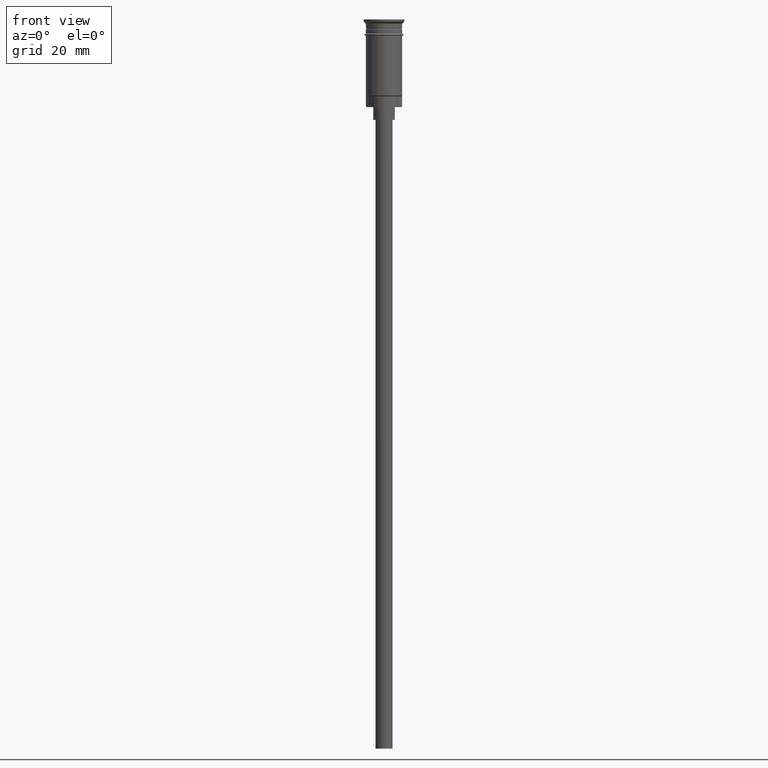
[diagram: clean part render]
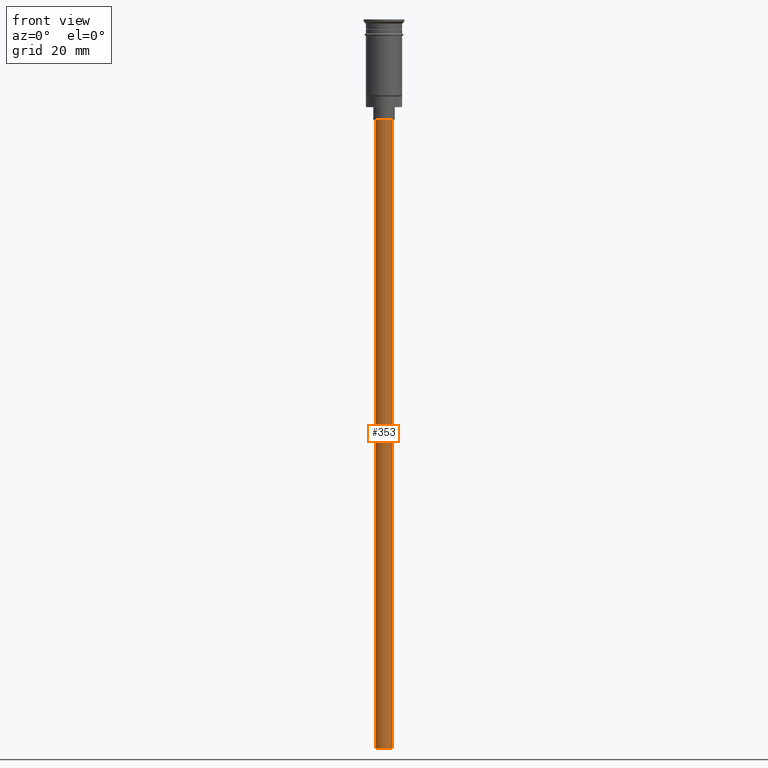
[diagram: same view with one face highlighted and labeled with its STEP entity id]
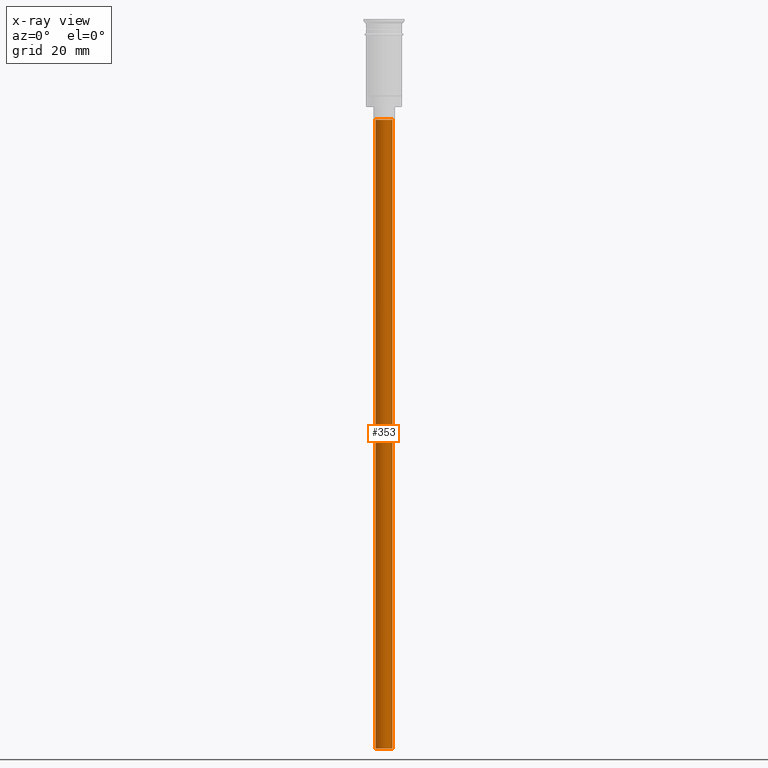
[diagram: x-ray of the same camera — body ghosted, the highlighted face saturated]
A machine part, front view. The second image highlights one B-rep face of the part: STEP entity #353.
The next image is the same camera in x-ray: the body ghosted, the highlighted face saturated — about 0% of this face is hidden behind the body in this view.
In plain terms, the highlighted cylindrical surface (edge-blend (fillet) strip) has radius 2 mm, axis along (-0, -0, 1).
Its self-contained STEP definition (entity closure, byte-faithful):
#15 = CARTESIAN_POINT ( 'NONE',  ( -2.000000000000000000, 2.449293598294706414E-16, -170.4999999999999716 ) ) ;
#66 = DIRECTION ( 'NONE',  ( 1.000000000000000000, 0.000000000000000000, 0.000000000000000000 ) ) ;
#150 = DIRECTION ( 'NONE',  ( 0.000000000000000000, 0.000000000000000000, -1.000000000000000000 ) ) ;
#210 = FACE_OUTER_BOUND ( 'NONE', #769, .T. ) ;
#224 = CYLINDRICAL_SURFACE ( 'NONE', #526, 2.000000000000000000 ) ;
#245 = CARTESIAN_POINT ( 'NONE',  ( -2.000000000000000000, 2.449293598294706414E-16, -23.49999999999999645 ) ) ;
#319 = CIRCLE ( 'NONE', #1092, 2.000000000000000000 ) ;
#353 = ADVANCED_FACE ( 'NONE', ( #210 ), #224, .T. ) ;
#354 = CARTESIAN_POINT ( 'NONE',  ( 0.000000000000000000, 0.000000000000000000, -170.4999999999999716 ) ) ;
#386 = CARTESIAN_POINT ( 'NONE',  ( 0.000000000000000000, 0.000000000000000000, -23.49999999999999645 ) ) ;
#396 = VECTOR ( 'NONE', #1204, 1000.000000000000000 ) ;
#400 = ORIENTED_EDGE ( 'NONE', *, *, #1389, .T. ) ;
#401 = ORIENTED_EDGE ( 'NONE', *, *, #1548, .F. ) ;
#431 = VERTEX_POINT ( 'NONE', #15 ) ;
#496 = DIRECTION ( 'NONE',  ( 0.000000000000000000, 0.000000000000000000, -1.000000000000000000 ) ) ;
#526 = AXIS2_PLACEMENT_3D ( 'NONE', #354, #1339, #66 ) ;
#566 = LINE ( 'NONE', #1088, #396 ) ;
#714 = CIRCLE ( 'NONE', #1350, 2.000000000000000000 ) ;
#737 = ORIENTED_EDGE ( 'NONE', *, *, #1295, .T. ) ;
#763 = ORIENTED_EDGE ( 'NONE', *, *, #1081, .F. ) ;
#769 = EDGE_LOOP ( 'NONE', ( #401, #763, #400, #737 ) ) ;
#776 = CARTESIAN_POINT ( 'NONE',  ( 2.000000000000000000, 0.000000000000000000, -170.4999999999999716 ) ) ;
#823 = DIRECTION ( 'NONE',  ( -1.000000000000000000, 0.000000000000000000, 0.000000000000000000 ) ) ;
#893 = CARTESIAN_POINT ( 'NONE',  ( 2.000000000000000000, 0.000000000000000000, -23.49999999999999645 ) ) ;
#996 = DIRECTION ( 'NONE',  ( -1.000000000000000000, 0.000000000000000000, 0.000000000000000000 ) ) ;
#1021 = LINE ( 'NONE', #1497, #1251 ) ;
#1081 = EDGE_CURVE ( 'NONE', #1361, #431, #714, .T. ) ;
#1088 = CARTESIAN_POINT ( 'NONE',  ( -2.000000000000000000, 2.449293598294706414E-16, -170.4999999999999716 ) ) ;
#1092 = AXIS2_PLACEMENT_3D ( 'NONE', #386, #496, #996 ) ;
#1204 = DIRECTION ( 'NONE',  ( -0.000000000000000000, -0.000000000000000000, 1.000000000000000000 ) ) ;
#1251 = VECTOR ( 'NONE', #1388, 1000.000000000000000 ) ;
#1283 = VERTEX_POINT ( 'NONE', #245 ) ;
#1295 = EDGE_CURVE ( 'NONE', #1297, #1283, #319, .T. ) ;
#1297 = VERTEX_POINT ( 'NONE', #893 ) ;
#1339 = DIRECTION ( 'NONE',  ( -0.000000000000000000, -0.000000000000000000, 1.000000000000000000 ) ) ;
#1350 = AXIS2_PLACEMENT_3D ( 'NONE', #1385, #150, #823 ) ;
#1361 = VERTEX_POINT ( 'NONE', #776 ) ;
#1385 = CARTESIAN_POINT ( 'NONE',  ( 0.000000000000000000, 0.000000000000000000, -170.4999999999999716 ) ) ;
#1388 = DIRECTION ( 'NONE',  ( -0.000000000000000000, -0.000000000000000000, 1.000000000000000000 ) ) ;
#1389 = EDGE_CURVE ( 'NONE', #1361, #1297, #1021, .T. ) ;
#1497 = CARTESIAN_POINT ( 'NONE',  ( 2.000000000000000000, 0.000000000000000000, -170.4999999999999716 ) ) ;
#1548 = EDGE_CURVE ( 'NONE', #431, #1283, #566, .T. ) ;